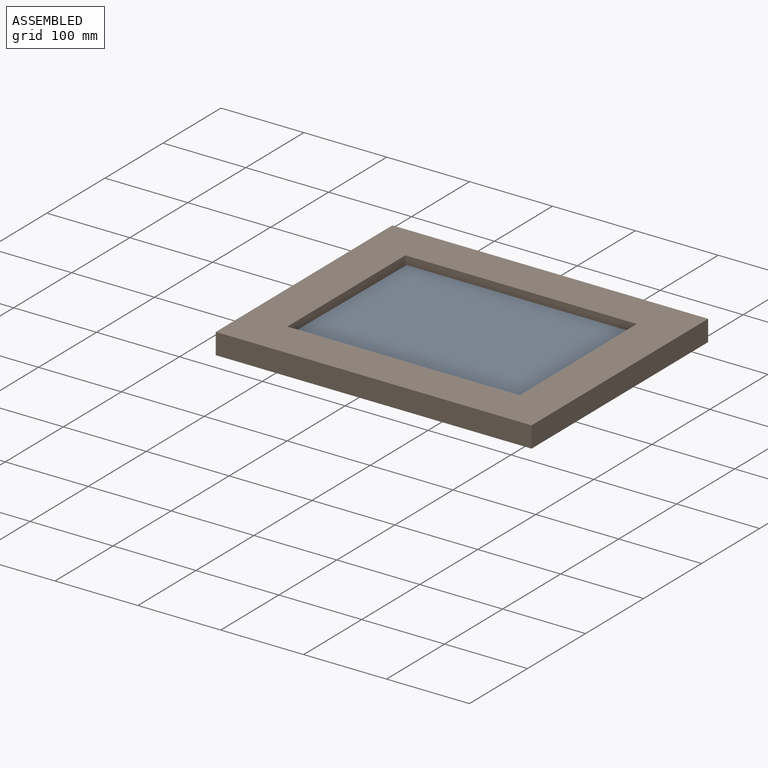
[diagram: assembled view]
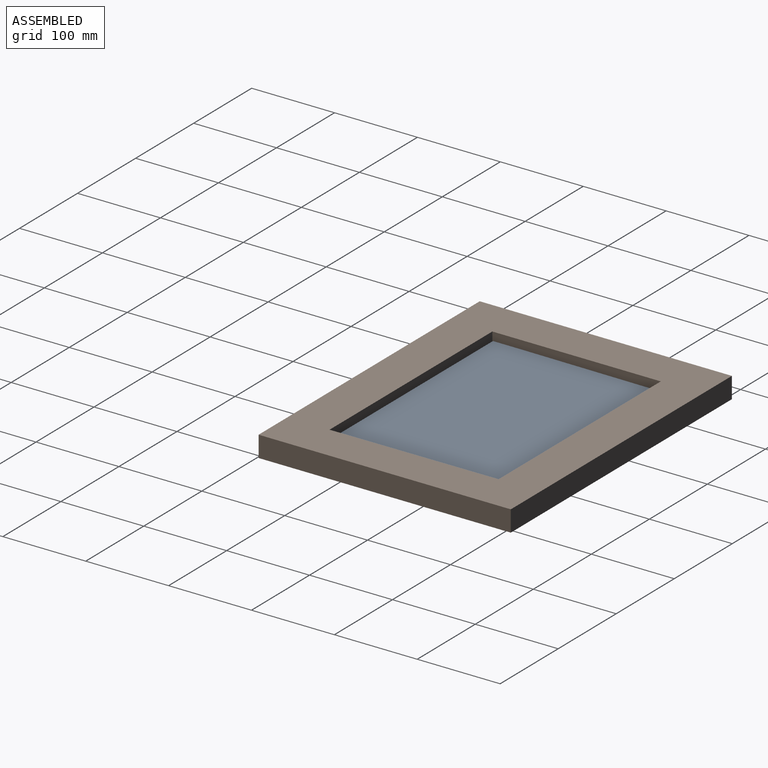
[diagram: assembled view, second angle]
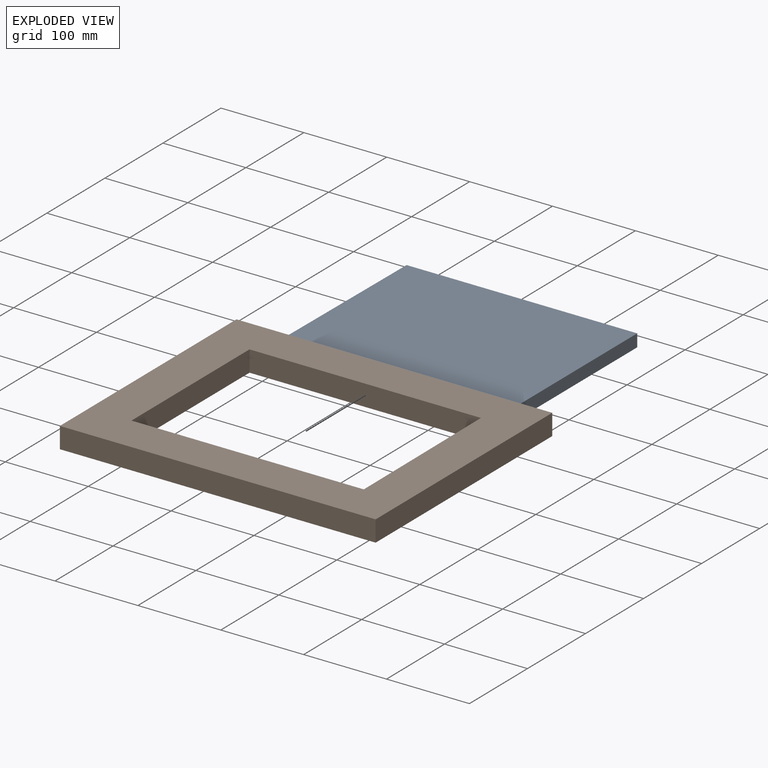
[diagram: exploded view]
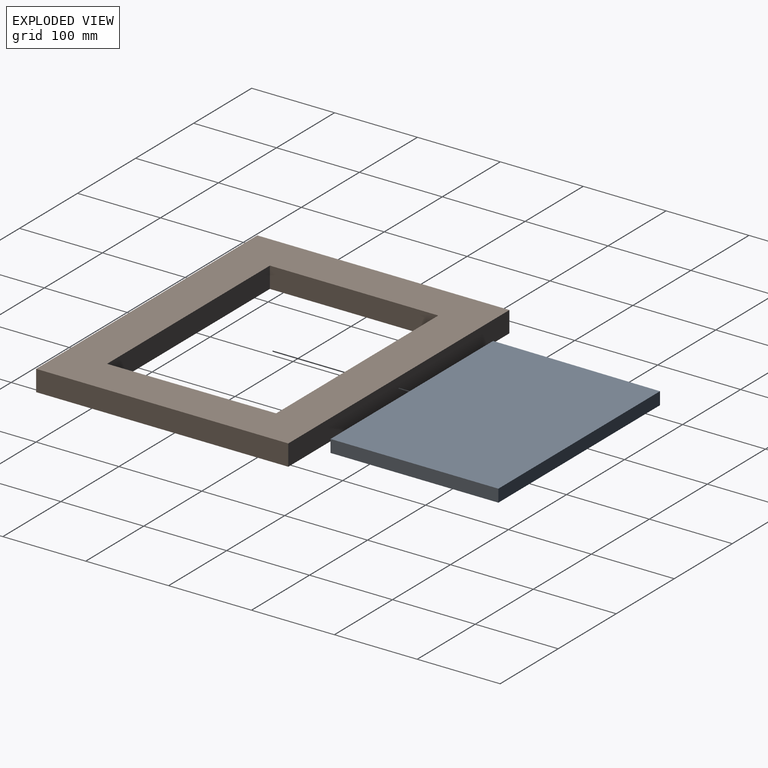
[diagram: exploded view, second angle]
ASSEMBLY  parts=2 mates=2
PART A: 6 faces, bbox 280x202.6x15.2 mm
  f0: plane 202.57x15.24mm, normal (-1,0.01,0), area 3087.3mm2, adj f1,f3,f4,f5
  f1: plane 280.01x15.24mm, normal (0,-1,0), area 4267.4mm2, adj f0,f2,f4,f5
  f2: plane 202.57x15.24mm, normal (1,0,0), area 3087.2mm2, adj f1,f3,f4,f5
  f3: plane 278.31x15.24mm, normal (0,1,0), area 4241.5mm2, adj f0,f2,f4,f5
  f4: plane 280.01x202.57mm, normal (0,0,-1), area 56551.4mm2, adj f0,f1,f2,f3
  f5: plane 280.01x202.57mm, normal (0,0,1), area 56551.4mm2, adj f0,f1,f2,f3
PART B: 10 faces, bbox 381x304.3x25.4 mm
  f0: plane 381x25.4mm, normal (0,1,0), area 9677.4mm2, adj f1,f7,f8,f9
  f1: plane 304.27x25.4mm, normal (-1,0,0), area 7728.4mm2, adj f0,f2,f8,f9
  f2: plane 381x25.4mm, normal (0,-1,0), area 9677.4mm2, adj f1,f7,f8,f9
  f3: plane 280.37x25.4mm, normal (0,1,0), area 7121.5mm2, adj f4,f6,f8,f9
  f4: plane 203.31x25.4mm, normal (1,0,0), area 5164mm2, adj f3,f5,f8,f9
  f5: plane 279.35x25.4mm, normal (0,-1,0), area 7095.5mm2, adj f4,f6,f8,f9
  f6: plane 203.29x25.4mm, normal (-1,0,0), area 5163.6mm2, adj f3,f5,f8,f9
  f7: plane 304.27x25.4mm, normal (1,0,0), area 7728.4mm2, adj f0,f2,f8,f9
  f8: plane 381x304.27mm, normal (0,0,-1), area 59030mm2, adj f0,f1,f2,f3,f4,f5,f6,f7
  f9: plane 381x304.27mm, normal (0,0,1), area 59030mm2, adj f0,f1,f2,f3,f4,f5,f6,f7
PLACE A rot(axis=(0,0,-1),0deg) t=(-82.2,-155.78,214.42)mm
PLACE B t=(-83.59,-155.87,224.58)mm fixed
MATE planar A.f3 <-> B.f5  axis (0,1,0) through (-172.18,-235.21,206.8)mm
MATE planar A.f4 <-> B.f8  axis (0,0,-1) through (-172.64,-336.6,199.18)mm
